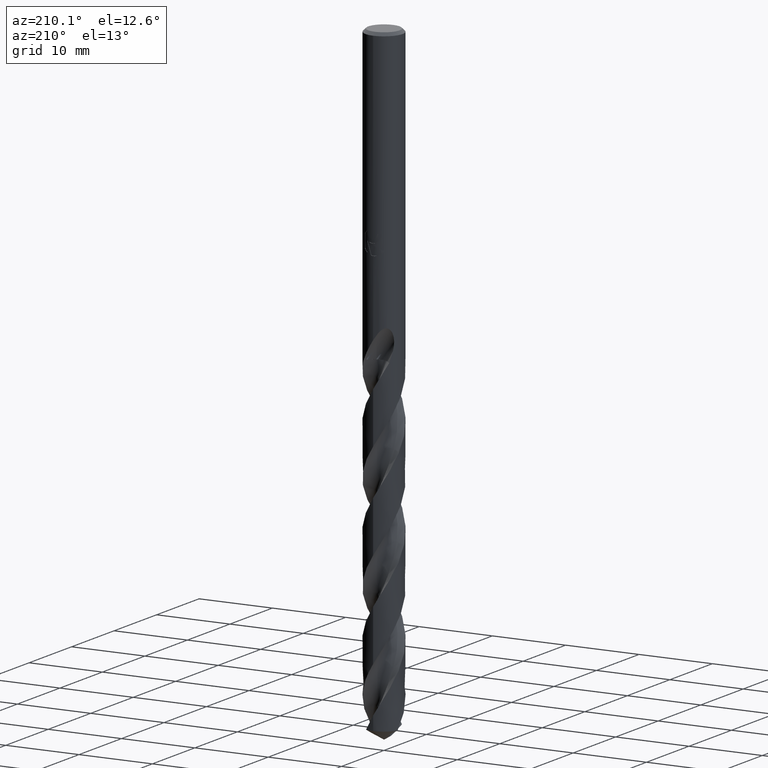
[diagram: clean part render]
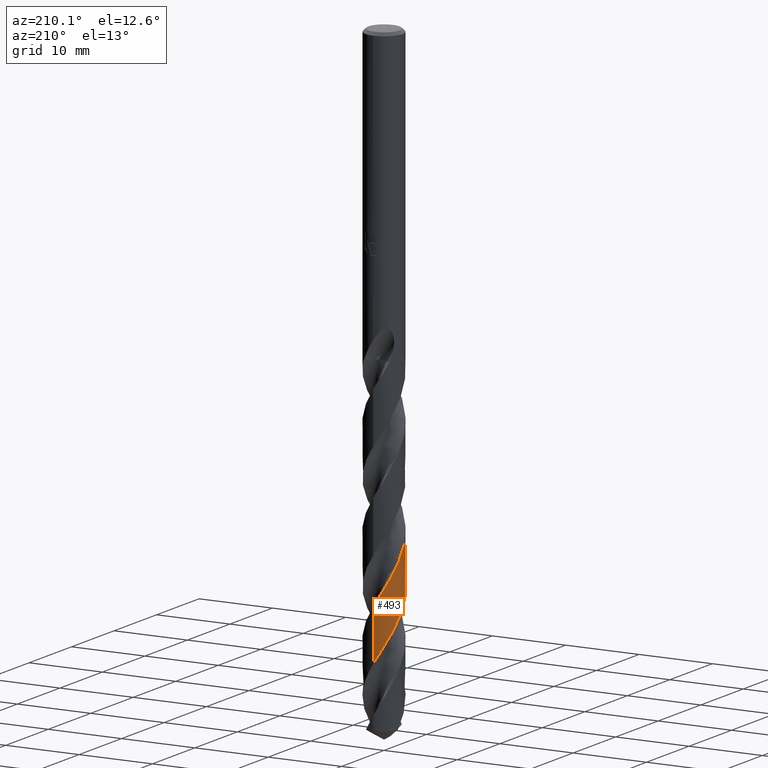
[diagram: same view with one face highlighted and labeled with its STEP entity id]
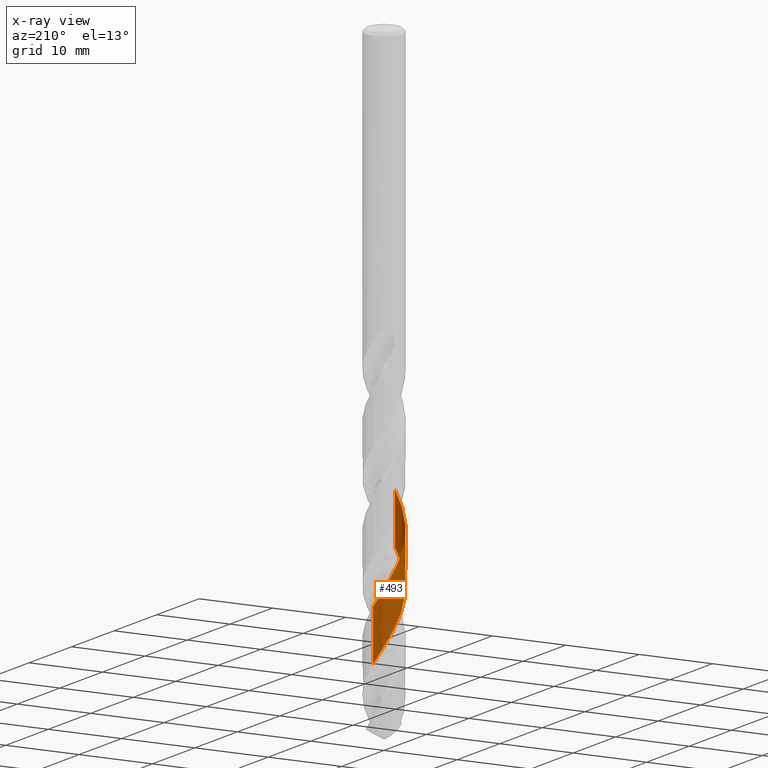
[diagram: x-ray of the same camera — body ghosted, the highlighted face saturated]
A machine part, auxiliary view. The second image highlights one B-rep face of the part: STEP entity #493.
The next image is the same camera in x-ray: the body ghosted, the highlighted face saturated — about 0% of this face is hidden behind the body in this view.
In plain terms, the highlighted conical surface has half-angle 0 deg.
Its self-contained STEP definition (entity closure, byte-faithful):
#283=VERTEX_POINT('',#782);
#329=EDGE_CURVE('',#751,#481,#834,.T.);
#401=EDGE_CURVE('',#745,#283,#914,.T.);
#481=VERTEX_POINT('',#1000);
#483=EDGE_CURVE('',#481,#745,#1002,.T.);
#493=ADVANCED_FACE('',(#1012),#1013,.T.);
#525=EDGE_CURVE('',#283,#751,#1047,.T.);
#745=VERTEX_POINT('',#1286);
#751=VERTEX_POINT('',#1294);
#782=CARTESIAN_POINT('',(2.06434925024663E-015,2.54998179692435,-76.3550940838159));
#834=LINE('',#1721,#1722);
#914=LINE('',#2780,#2781);
#1000=CARTESIAN_POINT('',(-2.11601092391563E-014,-2.54993674711478,-56.2773826135592));
#1002=B_SPLINE_CURVE_WITH_KNOTS('',3,(#3299,#3300,#3301,#3302,#3303,#3304,#3305,#3306,#3307,#3308,#3309,#3310,#3311,#3312,#3313,#3314,#3315,#3316,#3317,#3318,#3319,#3320,#3321,#3322,#3323,#3324,#3325,#3326,#3327,#3328,#3329,#3330,#3331,#3332,#3333,#3334,#3335,#3336,#3337,#3338,#3339,#3340,#3341,#3342,#3343,#3344,#3345,#3346,#3347,#3348,#3349,#3350,#3351,#3352,#3353,#3354,#3355,#3356,#3357,#3358,#3359,#3360,#3361,#3362,#3363,#3364,#3365,#3366,#3367,#3368,#3369,#3370,#3371,#3372,#3373,#3374,#3375,#3376,#3377,#3378,#3379,#3380,#3381,#3382,#3383,#3384,#3385,#3386,#3387,#3388,#3389,#3390,#3391,#3392,#3393,#3394,#3395,#3396,#3397,#3398,#3399,#3400,#3401,#3402,#3403,#3404,#3405,#3406,#3407,#3408,#3409,#3410,#3411,#3412,#3413,#3414,#3415,#3416,#3417,#3418,#3419,#3420,#3421,#3422,#3423,#3424,#3425,#3426,#3427,#3428,#3429,#3430,#3431,#3432,#3433,#3434,#3435,#3436,#3437,#3438,#3439,#3440,#3441,#3442,#3443,#3444,#3445,#3446,#3447,#3448,#3449,#3450,#3451,#3452,#3453,#3454,#3455,#3456,#3457,#3458,#3459,#3460,#3461,#3462,#3463,#3464,#3465,#3466,#3467,#3468),.UNSPECIFIED.,.F.,.F.,(4,2,2,2,2,2,2,2,2,2,2,2,2,2,2,2,2,2,2,2,2,2,2,2,2,2,2,2,2,2,2,2,2,2,2,2,2,2,2,2,2,2,2,2,2,2,2,2,2,2,2,2,2,2,2,2,2,2,2,2,2,2,2,2,2,2,2,2,2,2,2,2,2,2,2,2,2,2,2,2,2,2,2,2,4),(0.0,0.1289003867779,0.20967630502013,0.219927323090969,0.225768006477936,0.229305344294958,0.232364383055172,0.235037511193027,0.237393931175857,0.239486668046633,0.241357145269324,0.243038265261639,0.24455655098041,0.245933651104251,0.553742122734929,0.62620119059038,0.665839472495525,0.699098372249616,0.738495942715459,0.809883850500402,0.907787905792497,1.3025659709241,1.55537703078222,2.05097821827631,3.17018514934176,3.59520130477232,4.31916235546973,4.72959242782101,5.21941359158196,6.24876845473718,6.78867340482069,7.60494178970837,8.05060921443211,8.47452030020541,9.28223600969028,10.1687804271957,11.1496106452739,11.7241998773506,12.5660980655195,13.4523766035624,14.4277279662493,15.01130220461,15.8555301253719,16.7412279944075,17.7289046034798,18.2918258940535,19.1334201912062,20.0193564674023,20.9940905262768,21.5778628174823,22.4217270833739,23.3070814515528,24.2943119899361,24.857131033221,25.6985240480323,26.5840982412755,27.5589001514242,28.1416367680582,28.9847623658284,29.8698379283179,30.8555792243082,31.4200109149371,32.2613408721694,33.1465291053263,34.1218386842541,34.7027664713882,35.5450043512273,36.4298268261532,37.4136445093189,37.9804260079949,38.821792358744,39.706577274446,40.6826250197941,41.2613410300859,42.1028665177999,42.9874086452468,43.9687420813322,44.5384018301179,45.3816214074138,46.7217475423208,47.2280803274049,48.105228384568,48.7713048896164,49.7752339791634,50.7815817450342),.UNSPECIFIED.);
#1012=FACE_OUTER_BOUND('',#3674,.T.);
#1013=CONICAL_SURFACE('',#3675,2.54995,2.24377213673275E-006);
#1047=B_SPLINE_CURVE_WITH_KNOTS('',3,(#4836,#4837,#4838,#4839,#4840,#4841,#4842,#4843,#4844,#4845,#4846,#4847,#4848,#4849,#4850,#4851,#4852,#4853,#4854,#4855,#4856,#4857,#4858,#4859,#4860,#4861,#4862,#4863,#4864,#4865,#4866,#4867,#4868,#4869,#4870,#4871,#4872,#4873,#4874,#4875,#4876,#4877,#4878,#4879,#4880,#4881,#4882,#4883,#4884,#4885,#4886,#4887,#4888,#4889,#4890,#4891,#4892,#4893,#4894,#4895,#4896,#4897,#4898,#4899,#4900,#4901,#4902,#4903,#4904,#4905,#4906,#4907,#4908,#4909,#4910,#4911,#4912,#4913,#4914,#4915,#4916,#4917,#4918,#4919,#4920,#4921,#4922,#4923,#4924,#4925,#4926,#4927,#4928,#4929,#4930,#4931,#4932,#4933,#4934,#4935,#4936,#4937,#4938,#4939,#4940,#4941,#4942,#4943,#4944,#4945,#4946,#4947,#4948,#4949,#4950,#4951,#4952,#4953,#4954,#4955,#4956,#4957,#4958,#4959,#4960,#4961,#4962,#4963,#4964,#4965,#4966,#4967,#4968,#4969,#4970,#4971,#4972,#4973,#4974,#4975,#4976,#4977,#4978,#4979,#4980,#4981,#4982,#4983,#4984,#4985),.UNSPECIFIED.,.F.,.F.,(4,2,2,2,2,2,2,2,2,2,2,2,2,2,2,2,2,2,2,2,2,2,2,2,2,2,2,2,2,2,2,2,2,2,2,2,2,2,2,2,2,2,2,2,2,2,2,2,2,2,2,2,2,2,2,2,2,2,2,2,2,2,2,2,2,2,2,2,2,2,2,2,2,2,4),(0.0,0.834292459674619,1.25638308856406,2.08308224081408,2.98959708004024,3.74320338239227,4.64751619733098,5.43584933572268,6.27133898338755,7.0977921046257,7.93268776696286,8.76105196943183,9.59546811876491,10.3919298411075,11.2939375450753,12.0864861368241,12.920054774473,13.7544085557695,14.5878440667997,15.423852776262,16.2572192296612,17.0948435660273,17.9281829873467,18.7674322026949,19.5684862607322,20.4108366088573,21.1434496794337,21.6023358431682,22.3259790896244,23.233963263639,24.0255701684041,24.9334900178191,25.7167947637723,26.555168919761,27.3843845178338,28.2221715142705,29.0533926777859,29.8907018988019,30.1001117450132,30.4480686187432,31.4950693810496,32.3351093808538,33.1708524925985,34.0126132627201,34.8199937045484,35.664630696209,36.4066643482127,36.8313197786603,37.580866187403,38.4917240301091,39.2850806785072,40.1263892031595,40.9583432891031,41.7990204682036,42.6330559312034,43.4733478428731,43.6834805727513,44.0329225035173,45.0742290810254,45.9173383893087,46.7325994941373,47.0669812352283,47.5824034337252,48.9648410810972,49.0247331709308,50.2689648441536,50.9618016085863,51.443236267278,51.6333844460968,51.8175714265442,51.9729003532347,52.1343106950976,52.3748243318081,53.0497994714986,54.2855747476971),.UNSPECIFIED.);
#1286=CARTESIAN_POINT('',(1.62158510353197E-013,2.54996624901895,-69.4257338613223));
#1294=CARTESIAN_POINT('',(-5.20035051816348E-012,-2.54995229540106,-63.2069125859741));
#1721=CARTESIAN_POINT('',(3.12347290250066E-016,-2.54995,-62.1839027107399));
#1722=VECTOR('',#7970,1.0);
#2780=CARTESIAN_POINT('',(-3.12189704135808E-016,2.54995,-62.1839027107399));
#2781=VECTOR('',#8083,1.0);
#3299=CARTESIAN_POINT('',(-1.7723765108616,1.83321345482734,-39.905));
#3300=CARTESIAN_POINT('',(-1.75710082479515,1.84798231917754,-39.942345409149));
#3301=CARTESIAN_POINT('',(-1.74158352368253,1.86261607823018,-39.9797468883238));
#3302=CARTESIAN_POINT('',(-1.7158752497639,1.88625150478545,-40.0405273371217));
#3303=CARTESIAN_POINT('',(-1.70587498567545,1.89530114061216,-40.0638915283779));
#3304=CARTESIAN_POINT('',(-1.69445917770006,1.90546667381055,-40.0902150373534));
#3305=CARTESIAN_POINT('',(-1.69317173279362,1.90661078194075,-40.0931788339474));
#3306=CARTESIAN_POINT('',(-1.69114771753948,1.90840578372846,-40.0978305102769));
#3307=CARTESIAN_POINT('',(-1.69041246552744,1.9090570852861,-40.099518694452));
#3308=CARTESIAN_POINT('',(-1.68923091380225,1.91010250982506,-40.1022290246503));
#3309=CARTESIAN_POINT('',(-1.68878501316722,1.91049675986862,-40.1032512741058));
#3310=CARTESIAN_POINT('',(-1.68795307698173,1.9112318102534,-40.105157425643));
#3311=CARTESIAN_POINT('',(-1.68756710102275,1.91157262808963,-40.1060413403445));
#3312=CARTESIAN_POINT('',(-1.68684352010808,1.91221116193762,-40.1076975654927));
#3313=CARTESIAN_POINT('',(-1.6865059568547,1.91250889033874,-40.1084698852644));
#3314=CARTESIAN_POINT('',(-1.68587057748043,1.91306899132478,-40.1099229482114));
#3315=CARTESIAN_POINT('',(-1.68557279143794,1.91333137282118,-40.1106036981712));
#3316=CARTESIAN_POINT('',(-1.68501034884184,1.91382671189709,-40.1118889645978));
#3317=CARTESIAN_POINT('',(-1.68474571441892,1.91405967608105,-40.1124934862278));
#3318=CARTESIAN_POINT('',(-1.68424439849702,1.9145008122422,-40.1136382801826));
#3319=CARTESIAN_POINT('',(-1.68400773370455,1.91470898911376,-40.1141785562549));
#3320=CARTESIAN_POINT('',(-1.68355824042971,1.91510422794383,-40.1152043766916));
#3321=CARTESIAN_POINT('',(-1.68334542434983,1.91529129395906,-40.115689924773));
#3322=CARTESIAN_POINT('',(-1.68294030650592,1.91564727413575,-40.1166139603361));
#3323=CARTESIAN_POINT('',(-1.68274801489179,1.91581619097031,-40.1170524494959));
#3324=CARTESIAN_POINT('',(-1.68238123176374,1.91613829045939,-40.1178886279139));
#3325=CARTESIAN_POINT('',(-1.68220674770773,1.91629147566081,-40.1182863196675));
#3326=CARTESIAN_POINT('',(-1.64302384460731,1.95068193754742,-40.2075733927642));
#3327=CARTESIAN_POINT('',(-1.60323516826136,1.98355879727974,-40.2936515567197));
#3328=CARTESIAN_POINT('',(-1.55086329342116,2.02409931981106,-40.4016380699304));
#3329=CARTESIAN_POINT('',(-1.54080156605237,2.03176962800328,-40.4221640167497));
#3330=CARTESIAN_POINT('',(-1.52508711383509,2.04356402256881,-40.4539142188429));
#3331=CARTESIAN_POINT('',(-1.51950629570067,2.04771717809433,-40.4651311284185));
#3332=CARTESIAN_POINT('',(-1.50919528875433,2.05532490656425,-40.4857549433336));
#3333=CARTESIAN_POINT('',(-1.50447477134656,2.05878284358181,-40.495158579961));
#3334=CARTESIAN_POINT('',(-1.49412533668545,2.06630943565951,-40.5156980250104));
#3335=CARTESIAN_POINT('',(-1.48849218610201,2.07037110656198,-40.5268279873123));
#3336=CARTESIAN_POINT('',(-1.47258962472668,2.08173869663499,-40.558122914887));
#3337=CARTESIAN_POINT('',(-1.46228099878207,2.08899286646543,-40.578263518733));
#3338=CARTESIAN_POINT('',(-1.43768805662723,2.10602723033896,-40.626044427508));
#3339=CARTESIAN_POINT('',(-1.42354621183988,2.11561542706424,-40.6533399560316));
#3340=CARTESIAN_POINT('',(-1.3492400755399,2.16486813661586,-40.7965060616259));
#3341=CARTESIAN_POINT('',(-1.2884542569553,2.2015562412567,-40.91211653757));
#3342=CARTESIAN_POINT('',(-1.18714624689611,2.2571492457721,-41.1014328704564));
#3343=CARTESIAN_POINT('',(-1.14708250755872,2.27776863983421,-41.1754794635138));
#3344=CARTESIAN_POINT('',(-1.02710383189853,2.33556026650673,-41.3945428524944));
#3345=CARTESIAN_POINT('',(-0.94569054475681,2.36969664347883,-41.5396827580465));
#3346=CARTESIAN_POINT('',(-0.675173274216041,2.46695205194718,-42.0123670030964));
#3347=CARTESIAN_POINT('',(-0.480342691651086,2.51218965136044,-42.3373527534319));
#3348=CARTESIAN_POINT('',(-0.206745417929358,2.54264036946477,-42.7889613390525));
#3349=CARTESIAN_POINT('',(-0.131164228976441,2.54765460948168,-42.9132837801014));
#3350=CARTESIAN_POINT('',(0.0733090602386739,2.55210911823653,-43.2494413475797));
#3351=CARTESIAN_POINT('',(0.202234591228254,2.5451461864512,-43.46109828875));
#3352=CARTESIAN_POINT('',(0.402643478547547,2.51897995237044,-43.7928957204331));
#3353=CARTESIAN_POINT('',(0.474740292886891,2.50639449137294,-43.9128504486684));
#3354=CARTESIAN_POINT('',(0.631536457156175,2.47200905641116,-44.1760843485426));
#3355=CARTESIAN_POINT('',(0.715799651307436,2.44893671106806,-44.3191065398616));
#3356=CARTESIAN_POINT('',(0.972906273755773,2.3641381356545,-44.7634624135521));
#3357=CARTESIAN_POINT('',(1.14045068137314,2.2880339936105,-45.063892785551));
#3358=CARTESIAN_POINT('',(1.38123781303262,2.14557722436354,-45.5228560738743));
#3359=CARTESIAN_POINT('',(1.46120798956248,2.09193235044241,-45.6805285448341));
#3360=CARTESIAN_POINT('',(1.65394335694838,1.94619721319762,-46.0772965719924));
#3361=CARTESIAN_POINT('',(1.76226079247743,1.84869416400338,-46.3158988842429));
#3362=CARTESIAN_POINT('',(1.91597109789513,1.68446817317952,-46.6850648892814));
#3363=CARTESIAN_POINT('',(1.96752770696959,1.62395202498394,-46.8153312664105));
#3364=CARTESIAN_POINT('',(2.06246572789104,1.501340017724,-47.0696725883025));
#3365=CARTESIAN_POINT('',(2.10604707063752,1.43956451089131,-47.1935531134625));
#3366=CARTESIAN_POINT('',(2.22448294519126,1.25477955035464,-47.5539187485035));
#3367=CARTESIAN_POINT('',(2.29177221777368,1.12720719283332,-47.7900227746837));
#3368=CARTESIAN_POINT('',(2.40959054750615,0.849081796965022,-48.2857067380065));
#3369=CARTESIAN_POINT('',(2.45756027505976,0.698172389539032,-48.5441561491583));
#3370=CARTESIAN_POINT('',(2.52853086251414,0.373063189177631,-49.0906065147765));
#3371=CARTESIAN_POINT('',(2.54816720129012,0.198847127015647,-49.3770414159872));
#3372=CARTESIAN_POINT('',(2.55077174109361,-0.078535799314473,-49.8320941570523));
#3373=CARTESIAN_POINT('',(2.54555647842667,-0.18093435779369,-49.9998940003532));
#3374=CARTESIAN_POINT('',(2.51756356878523,-0.431860389635144,-50.4144177025546));
#3375=CARTESIAN_POINT('',(2.48778831492017,-0.579275010305784,-50.660550234012));
#3376=CARTESIAN_POINT('',(2.40038588627044,-0.874781296778172,-51.1662521032976));
#3377=CARTESIAN_POINT('',(2.34158404625479,-1.02179235304319,-51.4246662843443));
#3378=CARTESIAN_POINT('',(2.19032850306696,-1.31712207523675,-51.9695383906996));
#3379=CARTESIAN_POINT('',(2.09543275825326,-1.46340733582214,-52.2544403218185));
#3380=CARTESIAN_POINT('',(1.92106869747456,-1.6800200335991,-52.7106091793749));
#3381=CARTESIAN_POINT('',(1.85091516990051,-1.75700755570741,-52.8810589882676));
#3382=CARTESIAN_POINT('',(1.66828891668464,-1.93432360085718,-53.2989772364679));
#3383=CARTESIAN_POINT('',(1.55120926744088,-2.02942520113356,-53.5458361273543));
#3384=CARTESIAN_POINT('',(1.2954661707412,-2.20201543647695,-54.052148626433));
#3385=CARTESIAN_POINT('',(1.15663809863177,-2.27799769167237,-54.3104490812636));
#3386=CARTESIAN_POINT('',(0.850083174052981,-2.4105023258781,-54.8588661418706));
#3387=CARTESIAN_POINT('',(0.681590749856017,-2.46346294362942,-55.1473952135363));
#3388=CARTESIAN_POINT('',(0.410511538709561,-2.5186775340303,-55.6012107412484));
#3389=CARTESIAN_POINT('',(0.311035829316999,-2.53288449741426,-55.765676897921));
#3390=CARTESIAN_POINT('',(0.0614486043661623,-2.55360940757068,-56.1768563385945));
#3391=CARTESIAN_POINT('',(-0.0889452826599631,-2.55280361350817,-56.422995120745));
#3392=CARTESIAN_POINT('',(-0.395761769908905,-2.52399158980791,-56.9287032900503));
#3393=CARTESIAN_POINT('',(-0.551350340367504,-2.4946251236538,-57.187117168261));
#3394=CARTESIAN_POINT('',(-0.870255166881078,-2.40313479672044,-57.7319187158615));
#3395=CARTESIAN_POINT('',(-1.03204936247832,-2.33823114927872,-58.0167508795598));
#3396=CARTESIAN_POINT('',(-1.27824253899804,-2.20887981890743,-58.4729733307473));
#3397=CARTESIAN_POINT('',(-1.36737280565894,-2.15484010996276,-58.6435464936178));
#3398=CARTESIAN_POINT('',(-1.57661377668632,-2.00976338411463,-59.0615777861694));
#3399=CARTESIAN_POINT('',(-1.69248900481951,-1.91320724352992,-59.3084257725289));
#3400=CARTESIAN_POINT('',(-1.91112185121958,-1.69551878906015,-59.8147269542546));
#3401=CARTESIAN_POINT('',(-2.01243226408408,-1.57393381823246,-60.0730269981317));
#3402=CARTESIAN_POINT('',(-2.2015202919643,-1.29866603092405,-60.6214248667789));
#3403=CARTESIAN_POINT('',(-2.28595238527035,-1.14354689240931,-60.909935323105));
#3404=CARTESIAN_POINT('',(-2.39237601530823,-0.888179831467561,-61.3637657995736));
#3405=CARTESIAN_POINT('',(-2.42549257379308,-0.793286269096276,-61.5282655727917));
#3406=CARTESIAN_POINT('',(-2.49393344995752,-0.552327508653179,-61.9395150945714));
#3407=CARTESIAN_POINT('',(-2.52212419190187,-0.404573765366292,-62.1856899762885));
#3408=CARTESIAN_POINT('',(-2.5529658981003,-0.0979343517526164,-62.691428600299));
#3409=CARTESIAN_POINT('',(-2.55412593919532,0.0603943824266197,-62.9498369021303));
#3410=CARTESIAN_POINT('',(-2.52578529364102,0.39102862107752,-63.4947628037445));
#3411=CARTESIAN_POINT('',(-2.49324686921055,0.562374220130713,-63.7797238119037));
#3412=CARTESIAN_POINT('',(-2.41374546178859,0.828808093381166,-64.2358389598922));
#3413=CARTESIAN_POINT('',(-2.37793946412833,0.926544214781184,-64.4061759163839));
#3414=CARTESIAN_POINT('',(-2.27599922150101,1.15962556219637,-64.8238489520218));
#3415=CARTESIAN_POINT('',(-2.20362840303354,1.29187723830612,-65.0705768297394));
#3416=CARTESIAN_POINT('',(-2.03221742959786,1.54833223824733,-65.5767759008469));
#3417=CARTESIAN_POINT('',(-1.93244113483189,1.67119487663457,-65.83509388805));
#3418=CARTESIAN_POINT('',(-1.69892640616408,1.9096782027083,-66.3831856525232));
#3419=CARTESIAN_POINT('',(-1.56316345996098,2.02232397967677,-66.6713749375725));
#3420=CARTESIAN_POINT('',(-1.33303577862146,2.17611437715285,-67.1254173600655));
#3421=CARTESIAN_POINT('',(-1.2460272368374,2.22707547429479,-67.2904507487016));
#3422=CARTESIAN_POINT('',(-1.02243526130867,2.34082806970025,-67.7023132941945));
#3423=CARTESIAN_POINT('',(-0.882835201870884,2.39697155176244,-67.9485645025625));
#3424=CARTESIAN_POINT('',(-0.587839053545952,2.4863095160608,-68.454366945056));
#3425=CARTESIAN_POINT('',(-0.43270544811455,2.5179429126996,-68.7127628433285));
#3426=CARTESIAN_POINT('',(-0.102653134186653,2.55383598028536,-69.2579350304206));
#3427=CARTESIAN_POINT('',(0.0719114937841062,2.55489623834504,-69.5431525311561));
#3428=CARTESIAN_POINT('',(0.348542072464487,2.52816450478468,-69.9990624148352));
#3429=CARTESIAN_POINT('',(0.451065176260187,2.51189726219169,-70.1689375140744));
#3430=CARTESIAN_POINT('',(0.699053078756278,2.45688109781751,-70.5859816632532));
#3431=CARTESIAN_POINT('',(0.842682023890481,2.41139956397082,-70.8325458884157));
#3432=CARTESIAN_POINT('',(1.12730615333155,2.29270416147676,-71.3386066081493));
#3433=CARTESIAN_POINT('',(1.26712058755197,2.218489959766,-71.5969498107271));
#3434=CARTESIAN_POINT('',(1.54594719414897,2.03549467064486,-72.1446152994946));
#3435=CARTESIAN_POINT('',(1.68246491249005,1.92420250424309,-72.4323570867024));
#3436=CARTESIAN_POINT('',(1.87794393768554,1.7279882478801,-72.8867003879309));
#3437=CARTESIAN_POINT('',(1.94503768444925,1.65210049133316,-73.0524827753807));
#3438=CARTESIAN_POINT('',(2.10005746686224,1.45419877287774,-73.4652039642371));
#3439=CARTESIAN_POINT('',(2.18207415232358,1.32797161308297,-73.7115604721474));
#3440=CARTESIAN_POINT('',(2.32657479506827,1.05565252556611,-74.2174506920204));
#3441=CARTESIAN_POINT('',(2.38748797373662,0.909524277470647,-74.4758291733562));
#3442=CARTESIAN_POINT('',(2.48632958705661,0.59238215512472,-75.0213102694615));
#3443=CARTESIAN_POINT('',(2.52100908861841,0.421087908664485,-75.3068513065163));
#3444=CARTESIAN_POINT('',(2.54797384636629,0.144634623951022,-75.7625050688192));
#3445=CARTESIAN_POINT('',(2.55174028202438,0.0412528274618593,-75.9318004002087));
#3446=CARTESIAN_POINT('',(2.54557029114935,-0.212266980489316,-76.3481483205215));
#3447=CARTESIAN_POINT('',(2.52864257154912,-0.361901816357823,-76.5945997969798));
#3448=CARTESIAN_POINT('',(2.46707557044622,-0.66401752293947,-77.1005653011406));
#3449=CARTESIAN_POINT('',(2.42121293041097,-0.815530430406515,-77.3589259478865));
#3450=CARTESIAN_POINT('',(2.29555661504459,-1.12407541885227,-77.9059925326006));
#3451=CARTESIAN_POINT('',(2.21289067577643,-1.27917648076733,-78.1931233745036));
#3452=CARTESIAN_POINT('',(2.05805584439535,-1.50903987019931,-78.6477581365988));
#3453=CARTESIAN_POINT('',(1.99620255331197,-1.58995637923916,-78.8144438309289));
#3454=CARTESIAN_POINT('',(1.83125178725549,-1.78090863017221,-79.2287117479269));
#3455=CARTESIAN_POINT('',(1.72288201531559,-1.88595254309154,-79.4757039457289));
#3456=CARTESIAN_POINT('',(1.41986379078397,-2.13161099652913,-80.1158337506112));
#3457=CARTESIAN_POINT('',(1.21358653352633,-2.25542598411417,-80.5067077794185));
#3458=CARTESIAN_POINT('',(0.90985631428378,-2.38386235540575,-81.0481432011148));
#3459=CARTESIAN_POINT('',(0.824726762373744,-2.41463794158166,-81.1964838867651));
#3460=CARTESIAN_POINT('',(0.588066322069623,-2.48620554261302,-81.6020604167079));
#3461=CARTESIAN_POINT('',(0.434222603183263,-2.51762790294138,-81.8585488983761));
#3462=CARTESIAN_POINT('',(0.160322074455624,-2.54772775256942,-82.3111225796199));
#3463=CARTESIAN_POINT('',(0.0412976913343432,-2.55243731407633,-82.5062483324357));
#3464=CARTESIAN_POINT('',(-0.256957631043595,-2.54335078733456,-82.9958816795832));
#3465=CARTESIAN_POINT('',(-0.435149113569249,-2.51898486219866,-83.2892808441534));
#3466=CARTESIAN_POINT('',(-0.783807084526347,-2.43319703271543,-83.8787619975809));
#3467=CARTESIAN_POINT('',(-0.953378390369295,-2.37190252713942,-84.1728081523082));
#3468=CARTESIAN_POINT('',(-1.11514291587318,-2.29324143455892,-84.4678054214797));
#3674=EDGE_LOOP('',(#8168,#8169,#8170,#8171));
#3675=AXIS2_PLACEMENT_3D('',#8172,#8173,#8174);
#4836=CARTESIAN_POINT('',(2.37960457100722,-0.916505365855304,-84.4678054214798));
#4837=CARTESIAN_POINT('',(2.4314077289119,-0.782002724938314,-84.2299742114852));
#4838=CARTESIAN_POINT('',(2.47183770064505,-0.643036832091191,-83.9935396617518));
#4839=CARTESIAN_POINT('',(2.51469598142944,-0.429145140563815,-83.6361484513988));
#4840=CARTESIAN_POINT('',(2.52598170457256,-0.356740753823718,-83.516233217948));
#4841=CARTESIAN_POINT('',(2.55010066967089,-0.141515996397765,-83.1608521105374));
#4842=CARTESIAN_POINT('',(2.5540309316148,0.00205691930563587,-82.9247450150984));
#4843=CARTESIAN_POINT('',(2.53688119383066,0.302448901436252,-82.4315086156913));
#4844=CARTESIAN_POINT('',(2.51339174582382,0.458288771601277,-82.175074809917));
#4845=CARTESIAN_POINT('',(2.44445433281858,0.737683244226477,-81.7024493966522));
#4846=CARTESIAN_POINT('',(2.40345515809923,0.861966733542118,-81.4869869846659));
#4847=CARTESIAN_POINT('',(2.29253206168709,1.12756621422652,-81.0148747301565));
#4848=CARTESIAN_POINT('',(2.21879633777831,1.26649601945384,-80.7589518609733));
#4849=CARTESIAN_POINT('',(2.05784290590841,1.51209729538958,-80.2769004240994));
#4850=CARTESIAN_POINT('',(1.97381013609662,1.62026719921764,-80.0514575470918));
#4851=CARTESIAN_POINT('',(1.78345714345152,1.82832627079264,-79.5889528251164));
#4852=CARTESIAN_POINT('',(1.67658059237676,1.92679964806105,-79.3522617857931));
#4853=CARTESIAN_POINT('',(1.44851863633096,2.10352444380121,-78.8789081112087));
#4854=CARTESIAN_POINT('',(1.3279839473188,2.181624272133,-78.6425510225815));
#4855=CARTESIAN_POINT('',(1.07353861684915,2.31753276610081,-78.1693602881999));
#4856=CARTESIAN_POINT('',(0.940088737859944,2.37479924782631,-77.9328451822087));
#4857=CARTESIAN_POINT('',(0.665977945396942,2.46568018408529,-77.4591727610634));
#4858=CARTESIAN_POINT('',(0.526012122923874,2.49928049112403,-77.2222919138715));
#4859=CARTESIAN_POINT('',(0.240676905980928,2.54272769524863,-76.748753303468));
#4860=CARTESIAN_POINT('',(0.0958858212747944,2.55229341778424,-76.5124072549536));
#4861=CARTESIAN_POINT('',(-0.187209009152882,2.54685638675371,-76.0480652119043));
#4862=CARTESIAN_POINT('',(-0.324849866213372,2.53297408142609,-75.820362105869));
#4863=CARTESIAN_POINT('',(-0.614598497752286,2.47974624047608,-75.3367827757341));
#4864=CARTESIAN_POINT('',(-0.765571821436334,2.43737406957107,-75.0815921705969));
#4865=CARTESIAN_POINT('',(-1.04018746322578,2.33223320155632,-74.5993114253773));
#4866=CARTESIAN_POINT('',(-1.16429013504284,2.27281692542249,-74.372816938777));
#4867=CARTESIAN_POINT('',(-1.40794820830046,2.13095053255951,-73.9100211243571));
#4868=CARTESIAN_POINT('',(-1.52648439418542,2.04771700799985,-73.67407573736));
#4869=CARTESIAN_POINT('',(-1.74836543589251,1.8618678410227,-73.1996086842172));
#4870=CARTESIAN_POINT('',(-1.85110350794023,1.75974051311801,-72.9612914763721));
#4871=CARTESIAN_POINT('',(-2.03804307681624,1.53935047155004,-72.486856291073));
#4872=CARTESIAN_POINT('',(-2.12197873906884,1.42143097113866,-72.2510594624445));
#4873=CARTESIAN_POINT('',(-2.26926321518798,1.17210411484094,-71.7764213852044));
#4874=CARTESIAN_POINT('',(-2.33214307526094,1.041352629506,-71.5377798190521));
#4875=CARTESIAN_POINT('',(-2.43484800722986,0.771157653054908,-71.0631572479288));
#4876=CARTESIAN_POINT('',(-2.47460657533827,0.632092073166657,-70.8275126346536));
#4877=CARTESIAN_POINT('',(-2.53030841577706,0.347801420095566,-70.3527388611281));
#4878=CARTESIAN_POINT('',(-2.54597316501635,0.203361899302636,-70.1138108226032));
#4879=CARTESIAN_POINT('',(-2.55260267953974,-0.0856460517832033,-69.6390466669487));
#4880=CARTESIAN_POINT('',(-2.54368286335906,-0.229894010728993,-69.4035652454795));
#4881=CARTESIAN_POINT('',(-2.50132389962024,-0.516569258035382,-68.9286884298168));
#4882=CARTESIAN_POINT('',(-2.46783610864285,-0.658137573488848,-68.6895020340277));
#4883=CARTESIAN_POINT('',(-2.37934158054372,-0.927478760195419,-68.2238044504524));
#4884=CARTESIAN_POINT('',(-2.32544914559909,-1.05538452308151,-67.9975300323738));
#4885=CARTESIAN_POINT('',(-2.19394835622686,-1.30773477004709,-67.5313499553963));
#4886=CARTESIAN_POINT('',(-2.11565429729018,-1.43088936108948,-67.2916029765751));
#4887=CARTESIAN_POINT('',(-1.95080730157234,-1.64700802517128,-66.8449022061371));
#4888=CARTESIAN_POINT('',(-1.86666803990248,-1.74181274541502,-66.6380065909287));
#4889=CARTESIAN_POINT('',(-1.71872312447747,-1.88536095667709,-66.3004268979626));
#4890=CARTESIAN_POINT('',(-1.65925950233647,-1.93789121684154,-66.1705786844864));
#4891=CARTESIAN_POINT('',(-1.50016613724759,-2.06576621943969,-65.8352522248706));
#4892=CARTESIAN_POINT('',(-1.39710646873072,-2.13683029124416,-65.6291843934411));
#4893=CARTESIAN_POINT('',(-1.15361508940355,-2.27949886739694,-65.1663243324933));
#4894=CARTESIAN_POINT('',(-1.01111573018837,-2.34617657107202,-64.9103270727632));
#4895=CARTESIAN_POINT('',(-0.73474367189519,-2.44563657468697,-64.4281205828297));
#4896=CARTESIAN_POINT('',(-0.602502168111254,-2.48153513753755,-64.202592810249));
#4897=CARTESIAN_POINT('',(-0.3134549557508,-2.53548478247389,-63.7203454388331));
#4898=CARTESIAN_POINT('',(-0.156766956350533,-2.5499634791584,-63.4642994961606));
#4899=CARTESIAN_POINT('',(0.135571339665729,-2.54994263461037,-62.9843255759658));
#4900=CARTESIAN_POINT('',(0.270764441513668,-2.53915632123962,-62.7610949632416));
#4901=CARTESIAN_POINT('',(0.547859836716915,-2.49462367145585,-62.3007924697768));
#4902=CARTESIAN_POINT('',(0.688854970450945,-2.45942259613536,-62.0641049922574));
#4903=CARTESIAN_POINT('',(0.96179499135722,-2.36596038433138,-61.5907796533445));
#4904=CARTESIAN_POINT('',(1.09325646081003,-2.30816222888466,-61.3544490619053));
#4905=CARTESIAN_POINT('',(1.34659164755384,-2.17023867134347,-60.8812839072929));
#4906=CARTESIAN_POINT('',(1.46775779140328,-2.09019782298816,-60.644766935787));
#4907=CARTESIAN_POINT('',(1.69428766099156,-1.91109803807547,-60.1710946738443));
#4908=CARTESIAN_POINT('',(1.79925863582345,-1.81261180885162,-59.9342164342497));
#4909=CARTESIAN_POINT('',(1.99232550475777,-1.59807096939991,-59.4606770433797));
#4910=CARTESIAN_POINT('',(2.07986758250522,-1.48234567868995,-59.224328418925));
#4911=CARTESIAN_POINT('',(2.17644087201081,-1.32914467754465,-58.9273336596772));
#4912=CARTESIAN_POINT('',(2.19509073926034,-1.29811101760828,-58.8679197758888));
#4913=CARTESIAN_POINT('',(2.24291835549147,-1.21455144486074,-58.7096791336172));
#4914=CARTESIAN_POINT('',(2.27087560736506,-1.16143262866974,-58.6106878359367));
#4915=CARTESIAN_POINT('',(2.37530386846185,-0.94483042903045,-58.2149634190187));
#4916=CARTESIAN_POINT('',(2.43629903605532,-0.774204909353009,-57.9204587470481));
#4917=CARTESIAN_POINT('',(2.51282572949382,-0.45714245912827,-57.3858956339195));
#4918=CARTESIAN_POINT('',(2.53473397153501,-0.313537477286476,-57.1469887054149));
#4919=CARTESIAN_POINT('',(2.5538855169338,-0.0251228941669817,-56.6722731676568));
#4920=CARTESIAN_POINT('',(2.55122991003873,0.11935954092573,-56.4368154087797));
#4921=CARTESIAN_POINT('',(2.52134692086507,0.40758586644661,-55.961962684573));
#4922=CARTESIAN_POINT('',(2.49403107438295,0.550474533886716,-55.7227776661865));
#4923=CARTESIAN_POINT('',(2.41711532114256,0.824061668701054,-55.2559646374076));
#4924=CARTESIAN_POINT('',(2.36853052642515,0.954805481218563,-55.0285919636133));
#4925=CARTESIAN_POINT('',(2.24762148909326,1.21310220636369,-54.5613578793256));
#4926=CARTESIAN_POINT('',(2.1746662269884,1.33944296820168,-54.3216595799615));
#4927=CARTESIAN_POINT('',(2.01847765624581,1.56339460663643,-53.8729648640703));
#4928=CARTESIAN_POINT('',(1.93758819340089,1.6626132671059,-53.664042893193));
#4929=CARTESIAN_POINT('',(1.79904187904397,1.8085789433475,-53.3344601564403));
#4930=CARTESIAN_POINT('',(1.74640019661557,1.85945473828744,-53.2146242230329));
#4931=CARTESIAN_POINT('',(1.59516703065986,1.99354641445902,-52.8826602875931));
#4932=CARTESIAN_POINT('',(1.49222638369308,2.07173790658061,-52.669865691332));
#4933=CARTESIAN_POINT('',(1.25175869778981,2.22708207190118,-52.2003184559936));
#4934=CARTESIAN_POINT('',(1.11229837850979,2.29990066026603,-51.9443165711522));
#4935=CARTESIAN_POINT('',(0.840641736386714,2.41124940687934,-51.4623125871819));
#4936=CARTESIAN_POINT('',(0.710217669314206,2.45284164357966,-51.2369923640576));
#4937=CARTESIAN_POINT('',(0.435605072506893,2.51662784577249,-50.7746016108104));
#4938=CARTESIAN_POINT('',(0.291759034101154,2.53732663052322,-50.5379032563127));
#4939=CARTESIAN_POINT('',(0.00376135990861756,2.55395085328718,-50.064599898326));
#4940=CARTESIAN_POINT('',(-0.139771552460462,2.550127180457,-49.8283016622449));
#4941=CARTESIAN_POINT('',(-0.426424319910205,2.5181889245801,-49.3551700664555));
#4942=CARTESIAN_POINT('',(-0.568854967727851,2.48988190777836,-49.1186534019022));
#4943=CARTESIAN_POINT('',(-0.846264719103332,2.40969039330723,-48.6449944639924));
#4944=CARTESIAN_POINT('',(-0.980664784783842,2.35818888526115,-48.4081338419628));
#4945=CARTESIAN_POINT('',(-1.24050347692792,2.23253560519868,-47.9345807242114));
#4946=CARTESIAN_POINT('',(-1.36530267936407,2.15847577334844,-47.6982005331381));
#4947=CARTESIAN_POINT('',(-1.51262347977622,2.05313386403189,-47.4011740792771));
#4948=CARTESIAN_POINT('',(-1.54161828741597,2.03145185313662,-47.3417590029634));
#4949=CARTESIAN_POINT('',(-1.61751584060978,1.97213949227566,-47.1834349636025));
#4950=CARTESIAN_POINT('',(-1.66351081872185,1.93349629845119,-47.0843606500295));
#4951=CARTESIAN_POINT('',(-1.84091004671466,1.77344880555206,-46.6911694732106));
#4952=CARTESIAN_POINT('',(-1.96092091165915,1.6398275298705,-46.3992472918358));
#4953=CARTESIAN_POINT('',(-2.15118545960516,1.37679183017971,-45.8672538942771));
#4954=CARTESIAN_POINT('',(-2.22598194721478,1.25221937910342,-45.628316724905));
#4955=CARTESIAN_POINT('',(-2.35139622073676,0.996300918595079,-45.1601339494673));
#4956=CARTESIAN_POINT('',(-2.40262740230382,0.865521870261743,-44.9311213467362));
#4957=CARTESIAN_POINT('',(-2.45937023547338,0.675911074554252,-44.6068285618438));
#4958=CARTESIAN_POINT('',(-2.47398657454649,0.620269864383237,-44.5125548778087));
#4959=CARTESIAN_POINT('',(-2.50629824503398,0.477863354262999,-44.272674039658));
#4960=CARTESIAN_POINT('',(-2.52137873016751,0.39056973158914,-44.1267096573347));
#4961=CARTESIAN_POINT('',(-2.56010432352119,0.066490022191721,-43.5908725946136));
#4962=CARTESIAN_POINT('',(-2.55508754760549,-0.171820387509132,-43.2064742992563));
#4963=CARTESIAN_POINT('',(-2.51584682777103,-0.415503265889598,-42.7986872068017));
#4964=CARTESIAN_POINT('',(-2.51416060706138,-0.425586742126216,-42.7817801481299));
#4965=CARTESIAN_POINT('',(-2.47610202569416,-0.645059336016555,-42.4136587612899));
#4966=CARTESIAN_POINT('',(-2.41378673931903,-0.849374335631882,-42.0690530132158));
#4967=CARTESIAN_POINT('',(-2.27731537950553,-1.15327397623864,-41.5263528741518));
#4968=CARTESIAN_POINT('',(-2.22140704955216,-1.25730882871857,-41.334980103992));
#4969=CARTESIAN_POINT('',(-2.11683728933678,-1.42390510094111,-41.0045021029217));
#4970=CARTESIAN_POINT('',(-2.07173068149842,-1.48858279984692,-40.8687923250907));
#4971=CARTESIAN_POINT('',(-2.00635426836534,-1.57399775762745,-40.6767481977607));
#4972=CARTESIAN_POINT('',(-1.99279220272636,-1.59087477008055,-40.6372368175452));
#4973=CARTESIAN_POINT('',(-1.98015234483229,-1.60657807189408,-40.6008550953703));
#4974=CARTESIAN_POINT('',(-1.97379605499699,-1.61438265698982,-40.5830421366968));
#4975=CARTESIAN_POINT('',(-1.96181319595764,-1.62891395946738,-40.5503566964136));
#4976=CARTESIAN_POINT('',(-1.95623066501258,-1.63561512090868,-40.5354671673554));
#4977=CARTESIAN_POINT('',(-1.94463418086802,-1.64938746778346,-40.5052284137852));
#4978=CARTESIAN_POINT('',(-1.93861409288987,-1.65646025575091,-40.4898897521388));
#4979=CARTESIAN_POINT('',(-1.92333801690283,-1.67420533952588,-40.4518628386419));
#4980=CARTESIAN_POINT('',(-1.91394801733207,-1.68493610176903,-40.4292714696554));
#4981=CARTESIAN_POINT('',(-1.87721107085146,-1.7261901522882,-40.3438603172954));
#4982=CARTESIAN_POINT('',(-1.84817346526805,-1.75733607822768,-40.2823341551455));
#4983=CARTESIAN_POINT('',(-1.75977513940464,-1.84711227012021,-40.1115002616626));
#4984=CARTESIAN_POINT('',(-1.69605684103023,-1.90628296477936,-40.0065014335889));
#4985=CARTESIAN_POINT('',(-1.62486902012397,-1.96514394756601,-39.905));
#7970=DIRECTION('',(-2.74773761517024E-022,2.24377213673087E-006,0.999999999997483));
#8083=DIRECTION('',(-2.74773761517024E-022,2.24377213673087E-006,-0.999999999997483));
#8168=ORIENTED_EDGE('',*,*,#401,.T.);
#8169=ORIENTED_EDGE('',*,*,#525,.T.);
#8170=ORIENTED_EDGE('',*,*,#329,.T.);
#8171=ORIENTED_EDGE('',*,*,#483,.T.);
#8172=CARTESIAN_POINT('',(0.0,0.0,-62.1839027107399));
#8173=DIRECTION('',(0.0,-0.0,-1.0));
#8174=DIRECTION('',(0.0,1.0,0.0));